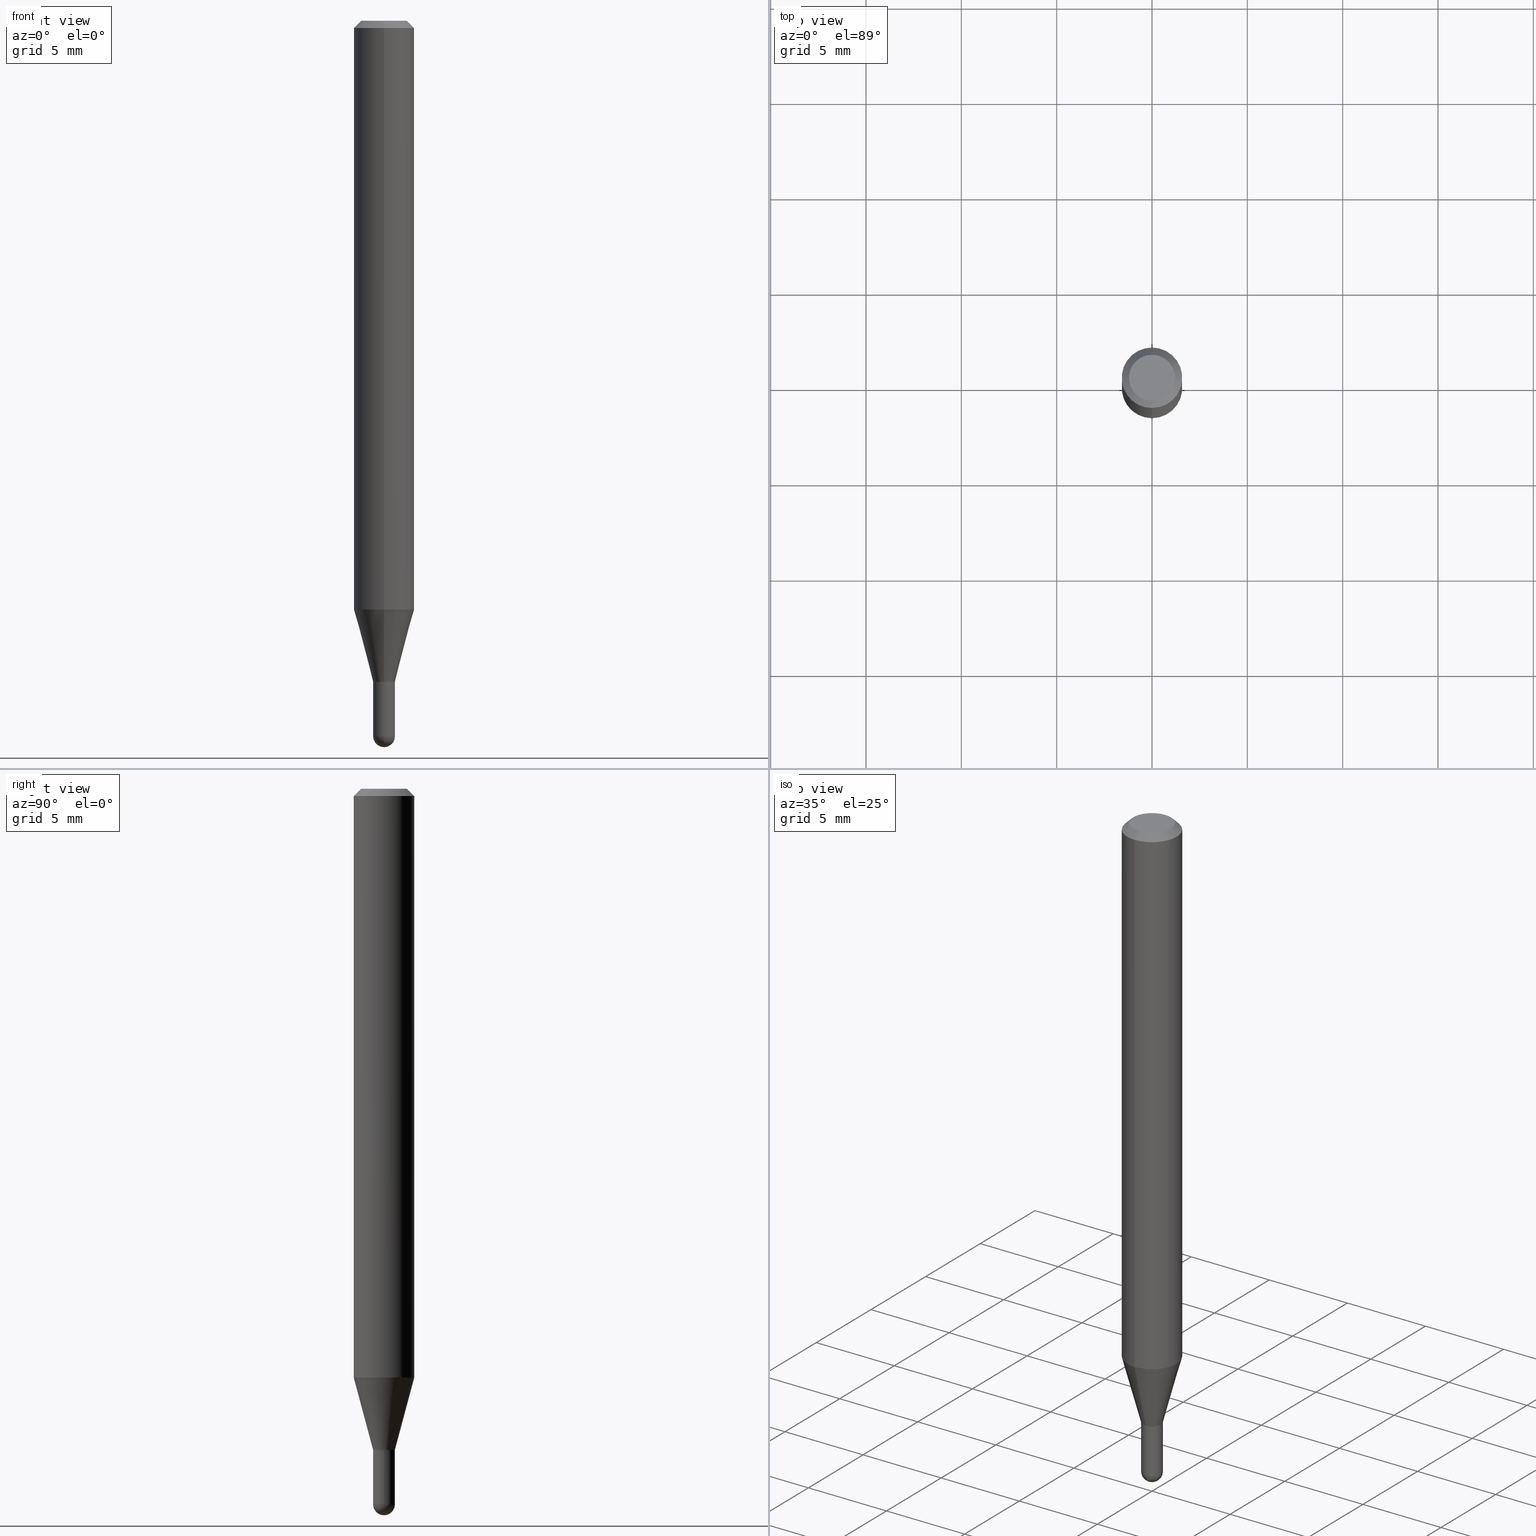
[diagram: canonical four-view strip — front | top / right | iso, engineering-drawing reading convention]
A machine part, canonical four-view strip (front | top / right | iso — engineering-drawing reading convention). The complete STEP part file that produces these views, byte-faithful:
ISO-10303-21;
HEADER;
FILE_DESCRIPTION (( 'STEP AP203' ),
    '1' );
FILE_NAME ('04423.STEP',
    '2024-03-08T19:23:19',
    ( '' ),
    ( '' ),
    'SwSTEP 2.0',
    'SolidWorks 2023',
    '' );
FILE_SCHEMA (( 'CONFIG_CONTROL_DESIGN' ));
ENDSEC;

DATA;
#1 = EDGE_CURVE ( 'NONE', #239, #338, #289, .T. ) ;
#2 = DIRECTION ( 'NONE',  ( -2.445464325019758025E-29, 3.491487756127019811E-15, 1.000000000000000000 ) ) ;
#3 = ADVANCED_FACE ( 'NONE', ( #274 ), #431, .T. ) ;
#4 = DIRECTION ( 'NONE',  ( -6.982962677686266711E-15, -1.000000000000000000, 3.491487756127019416E-15 ) ) ;
#5 = DIRECTION ( 'NONE',  ( 1.000000000000000000, -6.982962677686269077E-15, 0.000000000000000000 ) ) ;
#6 = CARTESIAN_POINT ( 'NONE',  ( -1.536251789090644327E-16, -0.02200000000000476574, -1.364999999999999769 ) ) ;
#7 = DIRECTION ( 'NONE',  ( -6.982962677686266711E-15, -1.000000000000000000, 0.000000000000000000 ) ) ;
#8 = ORIENTED_EDGE ( 'NONE', *, *, #333, .F. ) ;
#9 = CIRCLE ( 'NONE', #144, 0.02199999999999999872 ) ;
#10 = CIRCLE ( 'NONE', #148, 0.04749999999999999362 ) ;
#11 = EDGE_CURVE ( 'NONE', #424, #392, #95, .T. ) ;
#12 = CARTESIAN_POINT ( 'NONE',  ( 3.668196487529653118E-31, -5.237231634190552790E-17, -0.01500000000000006710 ) ) ;
#13 = ORIENTED_EDGE ( 'NONE', *, *, #129, .F. ) ;
#14 = FACE_OUTER_BOUND ( 'NONE', #61, .T. ) ;
#15 = ORIENTED_EDGE ( 'NONE', *, *, #168, .T. ) ;
#16 = DIRECTION ( 'NONE',  ( -6.982962677686266711E-15, -1.000000000000000000, 0.000000000000000000 ) ) ;
#17 = AXIS2_PLACEMENT_3D ( 'NONE', #280, #159, #4 ) ;
#18 = DIRECTION ( 'NONE',  ( 1.000000000000000000, -6.982962677686269077E-15, 0.000000000000000000 ) ) ;
#19 = EDGE_CURVE ( 'NONE', #285, #33, #125, .T. ) ;
#20 = APPROVAL ( #88, 'UNSPECIFIED' ) ;
#21 = PERSON_AND_ORGANIZATION ( #397, #102 ) ;
#22 = CARTESIAN_POINT ( 'NONE',  ( 3.338064920442711836E-29, -4.765872027520893280E-15, -1.364999999999999991 ) ) ;
#23 = APPROVAL_ROLE ( '' ) ;
#24 = EDGE_CURVE ( 'NONE', #424, #134, #509, .T. ) ;
#25 = EDGE_CURVE ( 'NONE', #275, #79, #158, .T. ) ;
#26 = LOCAL_TIME ( 14, 23, 19.00000000000000000, #463 ) ;
#27 = CARTESIAN_POINT ( 'NONE',  ( -0.02249999999999999917, -4.802395737284797637E-15, -1.364999999999999991 ) ) ;
#28 = PERSON_AND_ORGANIZATION_ROLE ( 'design_owner' ) ;
#29 = DIRECTION ( 'NONE',  ( -2.445464325019758025E-29, 3.491487756127019811E-15, 1.000000000000000000 ) ) ;
#30 = DIRECTION ( 'NONE',  ( 1.000000000000000000, -7.105427357601001070E-15, 4.926315508542082329E-29 ) ) ;
#31 = VERTEX_POINT ( 'NONE', #207 ) ;
#32 = ADVANCED_FACE ( 'NONE', ( #352 ), #87, .T. ) ;
#33 = VERTEX_POINT ( 'NONE', #313 ) ;
#34 = AXIS2_PLACEMENT_3D ( 'NONE', #59, #326, #492 ) ;
#35 = EDGE_CURVE ( 'NONE', #160, #190, #75, .T. ) ;
#36 = ORIENTED_EDGE ( 'NONE', *, *, #123, .T. ) ;
#37 = DIRECTION ( 'NONE',  ( -6.982962677686265922E-15, -1.000000000000000000, 0.000000000000000000 ) ) ;
#38 = ADVANCED_FACE ( 'NONE', ( #316 ), #241, .F. ) ;
#39 = VERTEX_POINT ( 'NONE', #246 ) ;
#40 = FACE_OUTER_BOUND ( 'NONE', #194, .T. ) ;
#41 = DIRECTION ( 'NONE',  ( -6.982962677686266711E-15, -1.000000000000000000, 0.000000000000000000 ) ) ;
#42 = PERSON_AND_ORGANIZATION_ROLE ( 'creator' ) ;
#43 = CARTESIAN_POINT ( 'NONE',  ( 3.611256036987885434E-29, -5.161419133438828807E-15, -1.477500000000000036 ) ) ;
#44 = CARTESIAN_POINT ( 'NONE',  ( 3.613180161138538918E-29, -5.158663678140747361E-15, -1.477500000000000036 ) ) ;
#45 = AXIS2_PLACEMENT_3D ( 'NONE', #43, #347, #37 ) ;
#46 = DIRECTION ( 'NONE',  ( 2.445464325019758025E-29, -3.491487756127019811E-15, -1.000000000000000000 ) ) ;
#47 = CARTESIAN_POINT ( 'NONE',  ( 3.338058803651969615E-29, -4.765880787113381937E-15, -1.364999999999999991 ) ) ;
#48 = LINE ( 'NONE', #398, #183 ) ;
#49 = DIRECTION ( 'NONE',  ( 1.000000000000000000, -6.982962677686269077E-15, 0.000000000000000000 ) ) ;
#50 = ORIENTED_EDGE ( 'NONE', *, *, #92, .T. ) ;
#51 = ORIENTED_EDGE ( 'NONE', *, *, #25, .F. ) ;
#52 = DESIGN_CONTEXT ( 'detailed design', #205, 'design' ) ;
#53 = ORIENTED_EDGE ( 'NONE', *, *, #442, .T. ) ;
#54 = CLOSED_SHELL ( 'NONE', ( #3, #339, #105, #122, #358 ) ) ;
#55 = CONICAL_SURFACE ( 'NONE', #191, 0.06250000000000000000, 0.7853981633974483900 ) ;
#56 = DIRECTION ( 'NONE',  ( -2.445468806185136597E-29, 3.491481338843145583E-15, 1.000000000000000000 ) ) ;
#57 = CARTESIAN_POINT ( 'NONE',  ( 3.611256036987885434E-29, -5.161419133438828807E-15, -1.477500000000000036 ) ) ;
#58 = ORIENTED_EDGE ( 'NONE', *, *, #108, .T. ) ;
#59 = CARTESIAN_POINT ( 'NONE',  ( 0.000000000000000000, 0.000000000000000000, 0.000000000000000000 ) ) ;
#60 = EDGE_CURVE ( 'NONE', #190, #275, #155, .T. ) ;
#61 = EDGE_LOOP ( 'NONE', ( #250, #117, #82, #357 ) ) ;
#62 = AXIS2_PLACEMENT_3D ( 'NONE', #114, #272, #237 ) ;
#63 = CARTESIAN_POINT ( 'NONE',  ( 3.338064920442711836E-29, -4.765872027520893280E-15, -1.364999999999999991 ) ) ;
#64 = ORIENTED_EDGE ( 'NONE', *, *, #267, .T. ) ;
#65 = CC_DESIGN_PERSON_AND_ORGANIZATION_ASSIGNMENT ( #21, #300, ( #359 ) ) ;
#66 = CARTESIAN_POINT ( 'NONE',  ( -1.571166602479050240E-16, -0.02250000000000518599, -1.477500000000000036 ) ) ;
#67 = DATE_AND_TIME ( #258, #26 ) ;
#68 = AXIS2_PLACEMENT_3D ( 'NONE', #444, #210, #7 ) ;
#69 = AXIS2_PLACEMENT_3D ( 'NONE', #447, #99, #295 ) ;
#70 = CONICAL_SURFACE ( 'NONE', #501, 0.02249999999999964528, 0.2617993877991574014 ) ;
#71 = LINE ( 'NONE', #417, #510 ) ;
#72 = EDGE_LOOP ( 'NONE', ( #381, #111, #64, #445 ) ) ;
#73 = EDGE_CURVE ( 'NONE', #33, #285, #480, .T. ) ;
#74 = ORIENTED_EDGE ( 'NONE', *, *, #259, .T. ) ;
#75 = CIRCLE ( 'NONE', #189, 0.02249999999999999917 ) ;
#76 = DIRECTION ( 'NONE',  ( -1.807323732225378260E-15, -0.2588190451025250693, 0.9659258262890670910 ) ) ;
#77 = CIRCLE ( 'NONE', #407, 0.02249999999999999917 ) ;
#78 = ORIENTED_EDGE ( 'NONE', *, *, #249, .F. ) ;
#79 = VERTEX_POINT ( 'NONE', #166 ) ;
#80 = CARTESIAN_POINT ( 'NONE',  ( 3.613180161138538918E-29, -5.158663678140747361E-15, -1.477500000000000036 ) ) ;
#81 = DATE_AND_TIME ( #465, #138 ) ;
#82 = ORIENTED_EDGE ( 'NONE', *, *, #11, .F. ) ;
#83 = APPLICATION_PROTOCOL_DEFINITION ( 'international standard', 'config_control_design', 1994, #205 ) ;
#84 = DIRECTION ( 'NONE',  ( -2.445464325019758025E-29, 3.491487756127019811E-15, 1.000000000000000000 ) ) ;
#85 = CARTESIAN_POINT ( 'NONE',  ( 3.613180161138538918E-29, -5.158663678140747361E-15, -1.477500000000000036 ) ) ;
#86 = LINE ( 'NONE', #198, #303 ) ;
#87 = CYLINDRICAL_SURFACE ( 'NONE', #349, 0.06250000000000000000 ) ;
#88 = APPROVAL_STATUS ( 'not_yet_approved' ) ;
#89 = CYLINDRICAL_SURFACE ( 'NONE', #17, 0.02249999999999964875 ) ;
#90 = DIRECTION ( 'NONE',  ( -6.982962677686266711E-15, -1.000000000000000000, 3.491487756127019416E-15 ) ) ;
#91 = DIRECTION ( 'NONE',  ( -6.982962677686266711E-15, -1.000000000000000000, 0.000000000000000000 ) ) ;
#92 = EDGE_CURVE ( 'NONE', #504, #154, #488, .T. ) ;
#93 = ORIENTED_EDGE ( 'NONE', *, *, #136, .F. ) ;
#94 = FACE_OUTER_BOUND ( 'NONE', #167, .T. ) ;
#95 = CIRCLE ( 'NONE', #302, 0.06250000000000000000 ) ;
#96 = AXIS2_PLACEMENT_3D ( 'NONE', #283, #156, #478 ) ;
#97 = SPHERICAL_SURFACE ( 'NONE', #458, 0.02250000000000005121 ) ;
#98 = EDGE_LOOP ( 'NONE', ( #324, #287, #452, #51, #485 ) ) ;
#99 = DIRECTION ( 'NONE',  ( 2.438088387897960049E-29, -3.491481338843145188E-15, -1.000000000000000000 ) ) ;
#100 = DATE_AND_TIME ( #143, #301 ) ;
#101 = AXIS2_PLACEMENT_3D ( 'NONE', #396, #203, #470 ) ;
#102 = ORGANIZATION ( 'UNSPECIFIED', 'UNSPECIFIED', '' ) ;
#103 = ORIENTED_EDGE ( 'NONE', *, *, #435, .T. ) ;
#104 = DATE_TIME_ROLE ( 'classification_date' ) ;
#105 = ADVANCED_FACE ( 'NONE', ( #290 ), #457, .F. ) ;
#106 = CIRCLE ( 'NONE', #271, 0.02249999999999964875 ) ;
#107 = LINE ( 'NONE', #336, #329 ) ;
#108 = EDGE_CURVE ( 'NONE', #109, #134, #213, .T. ) ;
#109 = VERTEX_POINT ( 'NONE', #253 ) ;
#110 = DIRECTION ( 'NONE',  ( -4.937700262164674260E-15, -0.7071067811865632269, 0.7071067811865319186 ) ) ;
#111 = ORIENTED_EDGE ( 'NONE', *, *, #333, .T. ) ;
#112 = EDGE_LOOP ( 'NONE', ( #216, #74, #50, #170 ) ) ;
#113 = VECTOR ( 'NONE', #76, 39.37007874015748854 ) ;
#114 = CARTESIAN_POINT ( 'NONE',  ( 0.000000000000000000, 0.000000000000000000, 0.000000000000000000 ) ) ;
#115 = CC_DESIGN_APPROVAL ( #20, ( #427 ) ) ;
#116 = ORIENTED_EDGE ( 'NONE', *, *, #507, .F. ) ;
#117 = ORIENTED_EDGE ( 'NONE', *, *, #249, .T. ) ;
#118 = CARTESIAN_POINT ( 'NONE',  ( 1.601777402267372811E-45, -2.286922009386618917E-31, -6.549992923141217135E-17 ) ) ;
#119 = ADVANCED_FACE ( 'NONE', ( #327 ), #173, .T. ) ;
#120 = FACE_OUTER_BOUND ( 'NONE', #284, .T. ) ;
#121 = DIRECTION ( 'NONE',  ( -2.445468806185136597E-29, 3.491481338843145583E-15, 1.000000000000000000 ) ) ;
#122 = ADVANCED_FACE ( 'NONE', ( #135 ), #97, .T. ) ;
#123 = EDGE_CURVE ( 'NONE', #39, #109, #410, .T. ) ;
#124 = DIRECTION ( 'NONE',  ( -6.982962677686265922E-15, -1.000000000000000000, 3.483106191921935554E-15 ) ) ;
#125 = CIRCLE ( 'NONE', #228, 0.02249999999999964528 ) ;
#126 = CARTESIAN_POINT ( 'NONE',  ( 0.000000000000000000, 0.000000000000000000, 0.000000000000000000 ) ) ;
#127 =( GEOMETRIC_REPRESENTATION_CONTEXT ( 3 ) GLOBAL_UNCERTAINTY_ASSIGNED_CONTEXT ( ( #499 ) ) GLOBAL_UNIT_ASSIGNED_CONTEXT ( ( #220, #175, #133 ) ) REPRESENTATION_CONTEXT ( 'NONE', 'WORKASPACE' ) );
#128 = EDGE_CURVE ( 'NONE', #33, #154, #262, .T. ) ;
#129 = EDGE_CURVE ( 'NONE', #31, #149, #288, .T. ) ;
#130 = FACE_OUTER_BOUND ( 'NONE', #231, .T. ) ;
#131 = DIRECTION ( 'NONE',  ( -2.445464325019758025E-29, 3.491487756127019811E-15, 1.000000000000000000 ) ) ;
#132 = EDGE_LOOP ( 'NONE', ( #176, #305, #261, #388 ) ) ;
#133 =( NAMED_UNIT ( * ) SI_UNIT ( $, .STERADIAN. ) SOLID_ANGLE_UNIT ( ) );
#134 = VERTEX_POINT ( 'NONE', #150 ) ;
#135 = FACE_OUTER_BOUND ( 'NONE', #307, .T. ) ;
#136 = EDGE_CURVE ( 'NONE', #338, #239, #9, .T. ) ;
#137 = ORIENTED_EDGE ( 'NONE', *, *, #267, .F. ) ;
#138 = LOCAL_TIME ( 14, 23, 19.00000000000000000, #196 ) ;
#139 = AXIS2_PLACEMENT_3D ( 'NONE', #63, #486, #362 ) ;
#140 = DIRECTION ( 'NONE',  ( -2.445468806185136597E-29, 3.491481338843145583E-15, 1.000000000000000000 ) ) ;
#141 = DIRECTION ( 'NONE',  ( -2.445464325019758025E-29, 3.491487756127019811E-15, 1.000000000000000000 ) ) ;
#142 = DIRECTION ( 'NONE',  ( -2.445464325019758025E-29, 3.491487756127019811E-15, 1.000000000000000000 ) ) ;
#143 = CALENDAR_DATE ( 2024, 8, 3 ) ;
#144 = AXIS2_PLACEMENT_3D ( 'NONE', #146, #29, #380 ) ;
#145 = CIRCLE ( 'NONE', #139, 0.02249999999999999917 ) ;
#146 = CARTESIAN_POINT ( 'NONE',  ( 3.338058803651969054E-29, -4.765880787113381148E-15, -1.364999999999999769 ) ) ;
#147 = CARTESIAN_POINT ( 'NONE',  ( 1.563194018672553858E-16, 0.02199999999999522823, -1.364999999999999769 ) ) ;
#148 = AXIS2_PLACEMENT_3D ( 'NONE', #118, #84, #278 ) ;
#149 = VERTEX_POINT ( 'NONE', #187 ) ;
#150 = CARTESIAN_POINT ( 'NONE',  ( -4.364351673553912750E-16, -0.06250000000000005551, -0.01499999999999984852 ) ) ;
#151 = ORIENTED_EDGE ( 'NONE', *, *, #60, .F. ) ;
#152 = CC_DESIGN_PERSON_AND_ORGANIZATION_ASSIGNMENT ( #461, #375, ( #383 ) ) ;
#153 = CARTESIAN_POINT ( 'NONE',  ( 3.316907271900976096E-16, 0.04749999999999999362, -1.985956330317395178E-16 ) ) ;
#154 = VERTEX_POINT ( 'NONE', #306 ) ;
#155 = CIRCLE ( 'NONE', #448, 0.02249999999999999917 ) ;
#156 = DIRECTION ( 'NONE',  ( -2.445468806185136597E-29, 3.491481338843145583E-15, 1.000000000000000000 ) ) ;
#157 = AXIS2_PLACEMENT_3D ( 'NONE', #276, #353, #162 ) ;
#158 = LINE ( 'NONE', #356, #374 ) ;
#159 = DIRECTION ( 'NONE',  ( -2.445464325019758025E-29, 3.491487756127019811E-15, 1.000000000000000000 ) ) ;
#160 = VERTEX_POINT ( 'NONE', #186 ) ;
#161 = DATE_AND_TIME ( #204, #394 ) ;
#162 = DIRECTION ( 'NONE',  ( -6.982962677686265922E-15, -1.000000000000000000, 0.000000000000000000 ) ) ;
#163 = DIRECTION ( 'NONE',  ( -2.445464325019758025E-29, 3.491487756127019811E-15, 1.000000000000000000 ) ) ;
#164 = EDGE_CURVE ( 'NONE', #239, #504, #467, .T. ) ;
#165 = DIRECTION ( 'NONE',  ( 6.982962677686265922E-15, 1.000000000000000000, -3.483106191921935554E-15 ) ) ;
#166 = CARTESIAN_POINT ( 'NONE',  ( 0.02249999999999999917, -4.922988687768834913E-15, -1.364999999999999991 ) ) ;
#167 = EDGE_LOOP ( 'NONE', ( #93, #270 ) ) ;
#168 = EDGE_CURVE ( 'NONE', #338, #154, #107, .T. ) ;
#169 = DIRECTION ( 'NONE',  ( -6.982962677686266711E-15, -1.000000000000000000, 0.000000000000000000 ) ) ;
#170 = ORIENTED_EDGE ( 'NONE', *, *, #128, .F. ) ;
#171 = CARTESIAN_POINT ( 'NONE',  ( 3.613180161138538918E-29, -5.158663678140747361E-15, -1.477500000000000036 ) ) ;
#172 = VERTEX_POINT ( 'NONE', #266 ) ;
#173 = CONICAL_SURFACE ( 'NONE', #222, 0.02199999999999999872, 0.7853981633974739252 ) ;
#174 = CIRCLE ( 'NONE', #157, 0.02250000000000005121 ) ;
#175 =( NAMED_UNIT ( * ) PLANE_ANGLE_UNIT ( ) SI_UNIT ( $, .RADIAN. ) );
#176 = ORIENTED_EDGE ( 'NONE', *, *, #136, .T. ) ;
#177 = APPROVAL_STATUS ( 'not_yet_approved' ) ;
#178 = PERSON_AND_ORGANIZATION ( #397, #102 ) ;
#179 = CARTESIAN_POINT ( 'NONE',  ( 3.338058803651969615E-29, -4.765880787113381937E-15, -1.364999999999999991 ) ) ;
#180 = DIRECTION ( 'NONE',  ( -6.982962677686265922E-15, -1.000000000000000000, 3.483106191921935554E-15 ) ) ;
#181 = CALENDAR_DATE ( 2024, 8, 3 ) ;
#182 = CC_DESIGN_PERSON_AND_ORGANIZATION_ASSIGNMENT ( #335, #227, ( #383 ) ) ;
#183 = VECTOR ( 'NONE', #433, 39.37007874015748143 ) ;
#184 = ADVANCED_BREP_SHAPE_REPRESENTATION ( '04423', ( #400, #405, #34 ), #127 ) ;
#185 = CIRCLE ( 'NONE', #340, 0.06250000000000000000 ) ;
#186 = CARTESIAN_POINT ( 'NONE',  ( -0.02249999999999999917, -4.802395737284797637E-15, -1.477500000000000036 ) ) ;
#187 = CARTESIAN_POINT ( 'NONE',  ( 1.598721155460587989E-16, 0.02249999999999486439, -1.477500000000000036 ) ) ;
#188 = EDGE_CURVE ( 'NONE', #160, #233, #71, .T. ) ;
#189 = AXIS2_PLACEMENT_3D ( 'NONE', #85, #474, #5 ) ;
#190 = VERTEX_POINT ( 'NONE', #66 ) ;
#191 = AXIS2_PLACEMENT_3D ( 'NONE', #206, #46, #165 ) ;
#192 = DIRECTION ( 'NONE',  ( -6.982962677686265922E-15, -1.000000000000000000, 0.000000000000000000 ) ) ;
#193 = PERSON_AND_ORGANIZATION ( #397, #102 ) ;
#194 = EDGE_LOOP ( 'NONE', ( #309, #484, #502, #310 ) ) ;
#195 = DIRECTION ( 'NONE',  ( -2.445464325019758025E-29, 3.491487756127019811E-15, 1.000000000000000000 ) ) ;
#196 = COORDINATED_UNIVERSAL_TIME_OFFSET ( 5, 0, .BEHIND. ) ;
#197 = ORIENTED_EDGE ( 'NONE', *, *, #129, .T. ) ;
#198 = CARTESIAN_POINT ( 'NONE',  ( -4.287811248607203282E-16, -0.06250000000000005551, -0.01499999999999984852 ) ) ;
#199 = ORIENTED_EDGE ( 'NONE', *, *, #19, .T. ) ;
#200 = COORDINATED_UNIVERSAL_TIME_OFFSET ( 5, 0, .BEHIND. ) ;
#201 = AXIS2_PLACEMENT_3D ( 'NONE', #22, #56, #365 ) ;
#202 = CARTESIAN_POINT ( 'NONE',  ( 1.598721155460533754E-16, 0.02249999999999487826, -1.364999999999999991 ) ) ;
#203 = DIRECTION ( 'NONE',  ( -2.445464325019758025E-29, 3.491487756127019811E-15, 1.000000000000000000 ) ) ;
#204 = CALENDAR_DATE ( 2024, 8, 3 ) ;
#205 = APPLICATION_CONTEXT ( 'configuration controlled 3d designs of mechanical parts and assemblies' ) ;
#206 = CARTESIAN_POINT ( 'NONE',  ( 3.668196487529653118E-31, -5.237231634190552790E-17, -0.01500000000000006710 ) ) ;
#207 = CARTESIAN_POINT ( 'NONE',  ( 3.665317023051724389E-29, -5.241355191211840740E-15, -1.500000000000000222 ) ) ;
#208 = APPROVAL_DATE_TIME ( #81, #20 ) ;
#209 = CARTESIAN_POINT ( 'NONE',  ( 3.019806626980729718E-16, 0.02249999999999487826, -1.364999999999999991 ) ) ;
#210 = DIRECTION ( 'NONE',  ( -2.445464325019758025E-29, 3.491487756127019811E-15, 1.000000000000000000 ) ) ;
#211 = ORIENTED_EDGE ( 'NONE', *, *, #292, .T. ) ;
#212 = CARTESIAN_POINT ( 'NONE',  ( 4.440892098500625669E-16, 0.06250000000000000000, -2.182179847579387382E-16 ) ) ;
#213 = CIRCLE ( 'NONE', #420, 0.06250000000000000000 ) ;
#214 = DIRECTION ( 'NONE',  ( -6.982962677686265922E-15, -1.000000000000000000, 3.491487756127019811E-15 ) ) ;
#215 = APPROVAL_PERSON_ORGANIZATION ( #178, #20, #235 ) ;
#216 = ORIENTED_EDGE ( 'NONE', *, *, #19, .F. ) ;
#217 = FACE_OUTER_BOUND ( 'NONE', #363, .T. ) ;
#218 = DIRECTION ( 'NONE',  ( -2.445464325019758025E-29, 3.491487756127019811E-15, 1.000000000000000000 ) ) ;
#219 = DIRECTION ( 'NONE',  ( 1.000000000000000000, -6.982962677686265922E-15, 4.883557194083111780E-29 ) ) ;
#220 =( CONVERSION_BASED_UNIT ( 'INCH', #298 ) LENGTH_UNIT ( ) NAMED_UNIT ( #372 ) );
#221 = EDGE_CURVE ( 'NONE', #33, #424, #425, .T. ) ;
#222 = AXIS2_PLACEMENT_3D ( 'NONE', #451, #260, #256 ) ;
#223 = ORIENTED_EDGE ( 'NONE', *, *, #292, .F. ) ;
#224 = AXIS2_PLACEMENT_3D ( 'NONE', #430, #195, #124 ) ;
#225 = CARTESIAN_POINT ( 'NONE',  ( -4.364351673553620871E-16, -0.06250000000000427436, -1.215717967697248048 ) ) ;
#226 = CC_DESIGN_DATE_AND_TIME_ASSIGNMENT ( #67, #104, ( #359 ) ) ;
#227 = PERSON_AND_ORGANIZATION_ROLE ( 'creator' ) ;
#228 = AXIS2_PLACEMENT_3D ( 'NONE', #47, #238, #41 ) ;
#229 = AXIS2_PLACEMENT_3D ( 'NONE', #80, #245, #355 ) ;
#230 = DIRECTION ( 'NONE',  ( 5.024295867788190974E-15, 0.7071067811865681119, 0.7071067811865270336 ) ) ;
#231 = EDGE_LOOP ( 'NONE', ( #402, #197, #429, #151 ) ) ;
#232 = VECTOR ( 'NONE', #497, 39.37007874015748143 ) ;
#233 = VERTEX_POINT ( 'NONE', #27 ) ;
#234 = FACE_OUTER_BOUND ( 'NONE', #320, .T. ) ;
#235 = APPROVAL_ROLE ( '' ) ;
#236 = ORIENTED_EDGE ( 'NONE', *, *, #188, .F. ) ;
#237 = DIRECTION ( 'NONE',  ( -6.982962677686265922E-15, -1.000000000000000000, 3.491487756127019811E-15 ) ) ;
#238 = DIRECTION ( 'NONE',  ( -2.445464325019758025E-29, 3.491487756127019811E-15, 1.000000000000000000 ) ) ;
#239 = VERTEX_POINT ( 'NONE', #243 ) ;
#240 = DIRECTION ( 'NONE',  ( -6.982962677686265922E-15, -1.000000000000000000, 0.000000000000000000 ) ) ;
#241 = CYLINDRICAL_SURFACE ( 'NONE', #366, 0.02249999999999964875 ) ;
#242 = APPROVAL_PERSON_ORGANIZATION ( #193, #503, #23 ) ;
#243 = CARTESIAN_POINT ( 'NONE',  ( 1.580957587066543560E-16, 0.02199999999999522823, -1.364999999999999769 ) ) ;
#244 = ORIENTED_EDGE ( 'NONE', *, *, #92, .F. ) ;
#245 = DIRECTION ( 'NONE',  ( -2.445468806185136597E-29, 3.491481338843145583E-15, 1.000000000000000000 ) ) ;
#246 = CARTESIAN_POINT ( 'NONE',  ( 3.840629472727447874E-16, 0.04749999999999999362, -2.313455976474456035E-16 ) ) ;
#247 = MECHANICAL_CONTEXT ( 'NONE', #389, 'mechanical' ) ;
#248 = CARTESIAN_POINT ( 'NONE',  ( 2.972994919289143303E-29, -4.244664399118566886E-15, -1.215717967697248492 ) ) ;
#249 = EDGE_CURVE ( 'NONE', #285, #392, #386, .T. ) ;
#250 = ORIENTED_EDGE ( 'NONE', *, *, #73, .T. ) ;
#251 = CARTESIAN_POINT ( 'NONE',  ( 3.336836071489460012E-29, -4.764135043235319188E-15, -1.364500000000000046 ) ) ;
#252 = CIRCLE ( 'NONE', #224, 0.06250000000000000000 ) ;
#253 = CARTESIAN_POINT ( 'NONE',  ( 4.440892098500924943E-16, 0.06249999999999993755, -0.01500000000000028394 ) ) ;
#254 = LOCAL_TIME ( 14, 23, 19.00000000000000000, #330 ) ;
#255 = PLANE ( 'NONE',  #331 ) ;
#256 = DIRECTION ( 'NONE',  ( -6.982962677686265922E-15, -1.000000000000000000, 0.000000000000000000 ) ) ;
#257 = PRODUCT_RELATED_PRODUCT_CATEGORY ( 'detail', '', ( #476 ) ) ;
#258 = CALENDAR_DATE ( 2024, 8, 3 ) ;
#259 = EDGE_CURVE ( 'NONE', #285, #504, #48, .T. ) ;
#260 = DIRECTION ( 'NONE',  ( -2.445464325019758025E-29, 3.491487756127019811E-15, 1.000000000000000000 ) ) ;
#261 = ORIENTED_EDGE ( 'NONE', *, *, #423, .F. ) ;
#262 = LINE ( 'NONE', #462, #232 ) ;
#263 = PERSON_AND_ORGANIZATION ( #397, #102 ) ;
#264 = AXIS2_PLACEMENT_3D ( 'NONE', #421, #30, #342 ) ;
#265 = AXIS2_PLACEMENT_3D ( 'NONE', #456, #141, #16 ) ;
#266 = CARTESIAN_POINT ( 'NONE',  ( -3.773273898774340269E-16, -0.04749999999999999362, 1.003457391846212608E-16 ) ) ;
#267 = EDGE_CURVE ( 'NONE', #134, #109, #252, .T. ) ;
#268 = EDGE_LOOP ( 'NONE', ( #8, #455, #36, #58 ) ) ;
#269 = DIRECTION ( 'NONE',  ( -2.445468806185136877E-29, 3.491481338843145188E-15, 1.000000000000000000 ) ) ;
#270 = ORIENTED_EDGE ( 'NONE', *, *, #1, .F. ) ;
#271 = AXIS2_PLACEMENT_3D ( 'NONE', #251, #218, #169 ) ;
#272 = DIRECTION ( 'NONE',  ( -2.445464325019758025E-29, 3.491487756127019811E-15, 1.000000000000000000 ) ) ;
#273 = ADVANCED_FACE ( 'NONE', ( #40 ), #89, .F. ) ;
#274 = FACE_OUTER_BOUND ( 'NONE', #98, .T. ) ;
#275 = VERTEX_POINT ( 'NONE', #439 ) ;
#276 = CARTESIAN_POINT ( 'NONE',  ( 3.611256036987885434E-29, -5.161419133438828807E-15, -1.477500000000000036 ) ) ;
#277 = CARTESIAN_POINT ( 'NONE',  ( 0.000000000000000000, 0.000000000000000000, 0.000000000000000000 ) ) ;
#278 = DIRECTION ( 'NONE',  ( -6.982962677686266711E-15, -1.000000000000000000, 3.491487756127020205E-15 ) ) ;
#279 = AXIS2_PLACEMENT_3D ( 'NONE', #483, #131, #91 ) ;
#280 = CARTESIAN_POINT ( 'NONE',  ( 0.000000000000000000, 0.000000000000000000, 0.000000000000000000 ) ) ;
#281 = DIRECTION ( 'NONE',  ( -2.445464325019758025E-29, 3.491487756127019811E-15, 1.000000000000000000 ) ) ;
#282 = ADVANCED_FACE ( 'NONE', ( #345 ), #291, .T. ) ;
#283 = CARTESIAN_POINT ( 'NONE',  ( 0.000000000000000000, 0.000000000000000000, 0.000000000000000000 ) ) ;
#284 = EDGE_LOOP ( 'NONE', ( #413, #211, #411, #348 ) ) ;
#285 = VERTEX_POINT ( 'NONE', #209 ) ;
#286 = CARTESIAN_POINT ( 'NONE',  ( 1.601777402267372811E-45, -2.286922009386618917E-31, -6.549992923141217135E-17 ) ) ;
#287 = ORIENTED_EDGE ( 'NONE', *, *, #188, .T. ) ;
#288 = CIRCLE ( 'NONE', #264, 0.02250000000000005121 ) ;
#289 = CIRCLE ( 'NONE', #101, 0.02199999999999999872 ) ;
#290 = FACE_OUTER_BOUND ( 'NONE', #294, .T. ) ;
#291 = CONICAL_SURFACE ( 'NONE', #416, 0.02199999999999999872, 0.7853981633974739252 ) ;
#292 = EDGE_CURVE ( 'NONE', #392, #424, #185, .T. ) ;
#293 = ADVANCED_FACE ( 'NONE', ( #351 ), #55, .T. ) ;
#294 = EDGE_LOOP ( 'NONE', ( #370, #344 ) ) ;
#295 = DIRECTION ( 'NONE',  ( -1.000000000000000000, 6.982962677686265922E-15, -4.876176775795935793E-29 ) ) ;
#296 = ORIENTED_EDGE ( 'NONE', *, *, #35, .T. ) ;
#297 = ORIENTED_EDGE ( 'NONE', *, *, #35, .F. ) ;
#298 = LENGTH_MEASURE_WITH_UNIT ( LENGTH_MEASURE( 0.02539999999999999897 ), #489 );
#299 = CC_DESIGN_APPROVAL ( #503, ( #383 ) ) ;
#300 = PERSON_AND_ORGANIZATION_ROLE ( 'classification_officer' ) ;
#301 = LOCAL_TIME ( 14, 23, 19.00000000000000000, #371 ) ;
#302 = AXIS2_PLACEMENT_3D ( 'NONE', #248, #479, #438 ) ;
#303 = VECTOR ( 'NONE', #512, 39.37007874015748143 ) ;
#304 = EDGE_CURVE ( 'NONE', #275, #149, #376, .T. ) ;
#305 = ORIENTED_EDGE ( 'NONE', *, *, #164, .T. ) ;
#306 = CARTESIAN_POINT ( 'NONE',  ( -1.571166602479056896E-16, -0.02250000000000449210, -1.364500000000000046 ) ) ;
#307 = EDGE_LOOP ( 'NONE', ( #13, #404, #297, #116 ) ) ;
#308 = DIRECTION ( 'NONE',  ( 6.982962677686265922E-15, 1.000000000000000000, -3.491487756127019811E-15 ) ) ;
#309 = ORIENTED_EDGE ( 'NONE', *, *, #259, .F. ) ;
#310 = ORIENTED_EDGE ( 'NONE', *, *, #423, .T. ) ;
#311 = APPROVAL_PERSON_ORGANIZATION ( #263, #323, #422 ) ;
#312 = DIRECTION ( 'NONE',  ( 1.839019923739649225E-15, 0.2588190451025318417, 0.9659258262890653146 ) ) ;
#313 = CARTESIAN_POINT ( 'NONE',  ( -1.571166602479051226E-16, -0.02250000000000441230, -1.364999999999999991 ) ) ;
#314 = FACE_OUTER_BOUND ( 'NONE', #318, .T. ) ;
#315 = CYLINDRICAL_SURFACE ( 'NONE', #96, 0.02249999999999999917 ) ;
#316 = FACE_OUTER_BOUND ( 'NONE', #112, .T. ) ;
#317 = CONICAL_SURFACE ( 'NONE', #459, 0.06250000000000000000, 0.7853981633974483900 ) ;
#318 = EDGE_LOOP ( 'NONE', ( #236, #296, #432, #471, #341 ) ) ;
#319 = CARTESIAN_POINT ( 'NONE',  ( 1.598721155460528577E-16, 0.02249999999999480541, -1.364500000000000046 ) ) ;
#320 = EDGE_LOOP ( 'NONE', ( #346, #103 ) ) ;
#321 = DIRECTION ( 'NONE',  ( 2.445464325019758025E-29, -3.491487756127019811E-15, -1.000000000000000000 ) ) ;
#322 = AXIS2_PLACEMENT_3D ( 'NONE', #277, #121, #441 ) ;
#323 = APPROVAL ( #177, 'UNSPECIFIED' ) ;
#324 = ORIENTED_EDGE ( 'NONE', *, *, #507, .T. ) ;
#325 = APPLICATION_PROTOCOL_DEFINITION ( 'international standard', 'config_control_design', 1994, #389 ) ;
#326 = DIRECTION ( 'NONE',  ( 0.000000000000000000, 0.000000000000000000, 1.000000000000000000 ) ) ;
#327 = FACE_OUTER_BOUND ( 'NONE', #132, .T. ) ;
#328 = SECURITY_CLASSIFICATION_LEVEL ( 'unclassified' ) ;
#329 = VECTOR ( 'NONE', #110, 39.37007874015748143 ) ;
#330 = COORDINATED_UNIVERSAL_TIME_OFFSET ( 5, 0, .BEHIND. ) ;
#331 = AXIS2_PLACEMENT_3D ( 'NONE', #450, #368, #414 ) ;
#332 = SHAPE_DEFINITION_REPRESENTATION ( #440, #184 ) ;
#333 = EDGE_CURVE ( 'NONE', #172, #134, #86, .T. ) ;
#334 = CARTESIAN_POINT ( 'NONE',  ( 4.364351673553919652E-16, 0.06249999999999995143, -0.01500000000000028394 ) ) ;
#335 = PERSON_AND_ORGANIZATION ( #397, #102 ) ;
#336 = CARTESIAN_POINT ( 'NONE',  ( -1.536251789090644327E-16, -0.02200000000000476574, -1.364999999999999769 ) ) ;
#337 = CC_DESIGN_APPROVAL ( #323, ( #359 ) ) ;
#338 = VERTEX_POINT ( 'NONE', #6 ) ;
#339 = ADVANCED_FACE ( 'NONE', ( #130 ), #443, .T. ) ;
#340 = AXIS2_PLACEMENT_3D ( 'NONE', #505, #469, #395 ) ;
#341 = ORIENTED_EDGE ( 'NONE', *, *, #453, .F. ) ;
#342 = DIRECTION ( 'NONE',  ( 7.105427357600999492E-15, 1.000000000000000000, 0.000000000000000000 ) ) ;
#343 = EDGE_CURVE ( 'NONE', #31, #190, #174, .T. ) ;
#344 = ORIENTED_EDGE ( 'NONE', *, *, #453, .T. ) ;
#345 = FACE_OUTER_BOUND ( 'NONE', #385, .T. ) ;
#346 = ORIENTED_EDGE ( 'NONE', *, *, #403, .T. ) ;
#347 = DIRECTION ( 'NONE',  ( 1.000000000000000000, -6.982962677686265922E-15, 4.883557194083111780E-29 ) ) ;
#348 = ORIENTED_EDGE ( 'NONE', *, *, #108, .F. ) ;
#349 = AXIS2_PLACEMENT_3D ( 'NONE', #354, #2, #214 ) ;
#350 = VECTOR ( 'NONE', #142, 39.37007874015748143 ) ;
#351 = FACE_OUTER_BOUND ( 'NONE', #72, .T. ) ;
#352 = FACE_OUTER_BOUND ( 'NONE', #361, .T. ) ;
#353 = DIRECTION ( 'NONE',  ( -1.000000000000000000, 6.982962677686265922E-15, -4.883557194083112340E-29 ) ) ;
#354 = CARTESIAN_POINT ( 'NONE',  ( 0.000000000000000000, 0.000000000000000000, 0.000000000000000000 ) ) ;
#355 = DIRECTION ( 'NONE',  ( 1.000000000000000000, -6.982962677686269077E-15, 0.000000000000000000 ) ) ;
#356 = CARTESIAN_POINT ( 'NONE',  ( 0.02249999999999999917, -1.571166602479409911E-16, 1.097139774554085483E-30 ) ) ;
#357 = ORIENTED_EDGE ( 'NONE', *, *, #221, .F. ) ;
#358 = ADVANCED_FACE ( 'NONE', ( #314 ), #315, .T. ) ;
#359 = SECURITY_CLASSIFICATION ( '', '', #328 ) ;
#360 = CARTESIAN_POINT ( 'NONE',  ( -4.364351673553916201E-16, -0.06250000000000000000, 2.182179847579387382E-16 ) ) ;
#361 = EDGE_LOOP ( 'NONE', ( #506, #53, #137, #468 ) ) ;
#362 = DIRECTION ( 'NONE',  ( 1.000000000000000000, -6.982962677686269077E-15, 0.000000000000000000 ) ) ;
#363 = EDGE_LOOP ( 'NONE', ( #78, #199, #379, #223 ) ) ;
#364 = DIRECTION ( 'NONE',  ( -6.982962677686266711E-15, -1.000000000000000000, 0.000000000000000000 ) ) ;
#365 = DIRECTION ( 'NONE',  ( 1.000000000000000000, -6.982962677686269077E-15, 0.000000000000000000 ) ) ;
#366 = AXIS2_PLACEMENT_3D ( 'NONE', #126, #281, #90 ) ;
#367 = APPROVAL_STATUS ( 'not_yet_approved' ) ;
#368 = DIRECTION ( 'NONE',  ( -2.445464325019757745E-29, 3.491487756127019811E-15, 1.000000000000000000 ) ) ;
#369 = ADVANCED_FACE ( 'NONE', ( #234 ), #472, .F. ) ;
#370 = ORIENTED_EDGE ( 'NONE', *, *, #490, .T. ) ;
#371 = COORDINATED_UNIVERSAL_TIME_OFFSET ( 5, 0, .BEHIND. ) ;
#372 = DIMENSIONAL_EXPONENTS ( 1.000000000000000000, 0.000000000000000000, 0.000000000000000000, 0.000000000000000000, 0.000000000000000000, 0.000000000000000000, 0.000000000000000000 ) ;
#373 = CARTESIAN_POINT ( 'NONE',  ( -1.571166602479051226E-16, -0.02250000000000441230, -1.364999999999999991 ) ) ;
#374 = VECTOR ( 'NONE', #434, 39.37007874015748143 ) ;
#375 = PERSON_AND_ORGANIZATION_ROLE ( 'design_supplier' ) ;
#376 = CIRCLE ( 'NONE', #229, 0.02249999999999999917 ) ;
#377 = ADVANCED_FACE ( 'NONE', ( #120 ), #390, .T. ) ;
#378 = DIRECTION ( 'NONE',  ( 4.937700262164548042E-15, 0.7071067811865451302, -0.7071067811865499042 ) ) ;
#379 = ORIENTED_EDGE ( 'NONE', *, *, #221, .T. ) ;
#380 = DIRECTION ( 'NONE',  ( -6.982962677686265922E-15, -1.000000000000000000, 0.000000000000000000 ) ) ;
#381 = ORIENTED_EDGE ( 'NONE', *, *, #435, .F. ) ;
#382 = VECTOR ( 'NONE', #163, 39.37007874015748143 ) ;
#383 = PRODUCT_DEFINITION_FORMATION_WITH_SPECIFIED_SOURCE ( 'ANY', '', #476, .NOT_KNOWN. ) ;
#384 = DATE_TIME_ROLE ( 'creation_date' ) ;
#385 = EDGE_LOOP ( 'NONE', ( #466, #464, #15, #244 ) ) ;
#386 = LINE ( 'NONE', #202, #406 ) ;
#387 = CC_DESIGN_DATE_AND_TIME_ASSIGNMENT ( #161, #384, ( #427 ) ) ;
#388 = ORIENTED_EDGE ( 'NONE', *, *, #168, .F. ) ;
#389 = APPLICATION_CONTEXT ( 'configuration controlled 3d designs of mechanical parts and assemblies' ) ;
#390 = CYLINDRICAL_SURFACE ( 'NONE', #62, 0.06250000000000000000 ) ;
#391 = PERSON_AND_ORGANIZATION ( #397, #102 ) ;
#392 = VERTEX_POINT ( 'NONE', #508 ) ;
#393 = DIRECTION ( 'NONE',  ( -2.445464325019758025E-29, 3.491487756127019811E-15, 1.000000000000000000 ) ) ;
#394 = LOCAL_TIME ( 14, 23, 19.00000000000000000, #200 ) ;
#395 = DIRECTION ( 'NONE',  ( -6.982962677686265922E-15, -1.000000000000000000, 4.370956789862821150E-15 ) ) ;
#396 = CARTESIAN_POINT ( 'NONE',  ( 3.338058803651969054E-29, -4.765880787113381148E-15, -1.364999999999999769 ) ) ;
#397 = PERSON ( 'UNSPECIFIED', 'UNSPECIFIED', 'UNSPECIFIED', ('UNSPECIFIED'), ('UNSPECIFIED'), ('UNSPECIFIED') ) ;
#398 = CARTESIAN_POINT ( 'NONE',  ( 1.598721155460200214E-16, 0.02249999999999964875, -7.855847451285671413E-17 ) ) ;
#399 = DIRECTION ( 'NONE',  ( -2.445468806185136597E-29, 3.491481338843145583E-15, 1.000000000000000000 ) ) ;
#400 = MANIFOLD_SOLID_BREP ( 'Body-Move/Copy2[1]', #54 ) ;
#401 = PERSON_AND_ORGANIZATION ( #397, #102 ) ;
#402 = ORIENTED_EDGE ( 'NONE', *, *, #343, .F. ) ;
#403 = EDGE_CURVE ( 'NONE', #39, #172, #10, .T. ) ;
#404 = ORIENTED_EDGE ( 'NONE', *, *, #343, .T. ) ;
#405 = MANIFOLD_SOLID_BREP ( 'Body-Move/Copy2[2]', #415 ) ;
#406 = VECTOR ( 'NONE', #312, 39.37007874015748143 ) ;
#407 = AXIS2_PLACEMENT_3D ( 'NONE', #171, #140, #18 ) ;
#408 = DIRECTION ( 'NONE',  ( -2.445464325019758025E-29, 3.491487756127019811E-15, 1.000000000000000000 ) ) ;
#409 = CC_DESIGN_PERSON_AND_ORGANIZATION_ASSIGNMENT ( #391, #42, ( #427 ) ) ;
#410 = LINE ( 'NONE', #334, #500 ) ;
#411 = ORIENTED_EDGE ( 'NONE', *, *, #24, .T. ) ;
#412 = DIRECTION ( 'NONE',  ( -2.445464325019758025E-29, 3.491487756127019811E-15, 1.000000000000000000 ) ) ;
#413 = ORIENTED_EDGE ( 'NONE', *, *, #442, .F. ) ;
#414 = DIRECTION ( 'NONE',  ( -6.982962677686265922E-15, -1.000000000000000000, 3.491487756127019811E-15 ) ) ;
#415 = CLOSED_SHELL ( 'NONE', ( #38, #119, #293, #32, #473, #494, #377, #419, #369, #436, #282, #273 ) ) ;
#416 = AXIS2_PLACEMENT_3D ( 'NONE', #482, #393, #240 ) ;
#417 = CARTESIAN_POINT ( 'NONE',  ( -0.02249999999999999917, 1.598721155460225359E-16, -1.106760395307353780E-30 ) ) ;
#418 = APPROVAL_DATE_TIME ( #100, #323 ) ;
#419 = ADVANCED_FACE ( 'NONE', ( #437 ), #317, .T. ) ;
#420 = AXIS2_PLACEMENT_3D ( 'NONE', #493, #487, #180 ) ;
#421 = CARTESIAN_POINT ( 'NONE',  ( 3.611256036987885434E-29, -5.161419133438828807E-15, -1.477500000000000036 ) ) ;
#422 = APPROVAL_ROLE ( '' ) ;
#423 = EDGE_CURVE ( 'NONE', #154, #504, #106, .T. ) ;
#424 = VERTEX_POINT ( 'NONE', #225 ) ;
#425 = LINE ( 'NONE', #373, #113 ) ;
#426 = CC_DESIGN_SECURITY_CLASSIFICATION ( #359, ( #383 ) ) ;
#427 = PRODUCT_DEFINITION ( 'UNKNOWN', '', #383, #52 ) ;
#428 = CONICAL_SURFACE ( 'NONE', #265, 0.02249999999999964528, 0.2617993877991574014 ) ;
#429 = ORIENTED_EDGE ( 'NONE', *, *, #304, .F. ) ;
#430 = CARTESIAN_POINT ( 'NONE',  ( 3.668196487529653118E-31, -5.237231634190552790E-17, -0.01500000000000006710 ) ) ;
#431 = CYLINDRICAL_SURFACE ( 'NONE', #322, 0.02249999999999999917 ) ;
#432 = ORIENTED_EDGE ( 'NONE', *, *, #60, .T. ) ;
#433 = DIRECTION ( 'NONE',  ( -2.445464325019758025E-29, 3.491487756127019811E-15, 1.000000000000000000 ) ) ;
#434 = DIRECTION ( 'NONE',  ( -2.445468806185136877E-29, 3.491481338843145188E-15, 1.000000000000000000 ) ) ;
#435 = EDGE_CURVE ( 'NONE', #172, #39, #449, .T. ) ;
#436 = ADVANCED_FACE ( 'NONE', ( #94 ), #255, .F. ) ;
#437 = FACE_OUTER_BOUND ( 'NONE', #268, .T. ) ;
#438 = DIRECTION ( 'NONE',  ( -6.982962677686265922E-15, -1.000000000000000000, 4.370956789862821150E-15 ) ) ;
#439 = CARTESIAN_POINT ( 'NONE',  ( 0.02249999999999999917, -5.119384513078760769E-15, -1.477500000000000036 ) ) ;
#440 = PRODUCT_DEFINITION_SHAPE ( 'NONE', 'NONE',  #427 ) ;
#441 = DIRECTION ( 'NONE',  ( 1.000000000000000000, -6.982962677686266711E-15, 4.876176775795935793E-29 ) ) ;
#442 = EDGE_CURVE ( 'NONE', #392, #109, #446, .T. ) ;
#443 = SPHERICAL_SURFACE ( 'NONE', #45, 0.02250000000000005121 ) ;
#444 = CARTESIAN_POINT ( 'NONE',  ( 3.338058803651969615E-29, -4.765880787113381937E-15, -1.364999999999999991 ) ) ;
#445 = ORIENTED_EDGE ( 'NONE', *, *, #123, .F. ) ;
#446 = LINE ( 'NONE', #212, #350 ) ;
#447 = CARTESIAN_POINT ( 'NONE',  ( 1.571166602479743698E-16, 0.02249999999999523215, -1.364999999999999991 ) ) ;
#448 = AXIS2_PLACEMENT_3D ( 'NONE', #44, #399, #49 ) ;
#449 = CIRCLE ( 'NONE', #511, 0.04749999999999999362 ) ;
#450 = CARTESIAN_POINT ( 'NONE',  ( 3.338058803651969054E-29, -4.765880787113381148E-15, -1.364999999999999769 ) ) ;
#451 = CARTESIAN_POINT ( 'NONE',  ( 3.338058803651969054E-29, -4.765880787113381148E-15, -1.364999999999999769 ) ) ;
#452 = ORIENTED_EDGE ( 'NONE', *, *, #490, .F. ) ;
#453 = EDGE_CURVE ( 'NONE', #233, #79, #145, .T. ) ;
#454 = DIRECTION ( 'NONE',  ( -6.982962677686266711E-15, -1.000000000000000000, 3.491487756127020205E-15 ) ) ;
#455 = ORIENTED_EDGE ( 'NONE', *, *, #403, .F. ) ;
#456 = CARTESIAN_POINT ( 'NONE',  ( 3.338058803651969615E-29, -4.765880787113381937E-15, -1.364999999999999991 ) ) ;
#457 = PLANE ( 'NONE',  #69 ) ;
#458 = AXIS2_PLACEMENT_3D ( 'NONE', #57, #219, #192 ) ;
#459 = AXIS2_PLACEMENT_3D ( 'NONE', #12, #321, #491 ) ;
#460 = APPROVAL_DATE_TIME ( #498, #503 ) ;
#461 = PERSON_AND_ORGANIZATION ( #397, #102 ) ;
#462 = CARTESIAN_POINT ( 'NONE',  ( -1.571166602479385506E-16, -0.02249999999999964875, 7.855847451285671413E-17 ) ) ;
#463 = COORDINATED_UNIVERSAL_TIME_OFFSET ( 5, 0, .BEHIND. ) ;
#464 = ORIENTED_EDGE ( 'NONE', *, *, #1, .T. ) ;
#465 = CALENDAR_DATE ( 2024, 8, 3 ) ;
#466 = ORIENTED_EDGE ( 'NONE', *, *, #164, .F. ) ;
#467 = LINE ( 'NONE', #147, #495 ) ;
#468 = ORIENTED_EDGE ( 'NONE', *, *, #24, .F. ) ;
#469 = DIRECTION ( 'NONE',  ( -2.445464325019758025E-29, 3.491487756127019811E-15, 1.000000000000000000 ) ) ;
#470 = DIRECTION ( 'NONE',  ( -6.982962677686265922E-15, -1.000000000000000000, 0.000000000000000000 ) ) ;
#471 = ORIENTED_EDGE ( 'NONE', *, *, #25, .T. ) ;
#472 = PLANE ( 'NONE',  #496 ) ;
#473 = ADVANCED_FACE ( 'NONE', ( #14 ), #70, .T. ) ;
#474 = DIRECTION ( 'NONE',  ( -2.445468806185136597E-29, 3.491481338843145583E-15, 1.000000000000000000 ) ) ;
#475 = DIRECTION ( 'NONE',  ( 2.445464325019757745E-29, -3.491487756127019811E-15, -1.000000000000000000 ) ) ;
#476 = PRODUCT ( '04423', '04423', '', ( #247 ) ) ;
#477 = CC_DESIGN_PERSON_AND_ORGANIZATION_ASSIGNMENT ( #401, #28, ( #476 ) ) ;
#478 = DIRECTION ( 'NONE',  ( 1.000000000000000000, -6.982962677686266711E-15, 4.876176775795935793E-29 ) ) ;
#479 = DIRECTION ( 'NONE',  ( -2.445464325019758025E-29, 3.491487756127019811E-15, 1.000000000000000000 ) ) ;
#480 = CIRCLE ( 'NONE', #68, 0.02249999999999964528 ) ;
#481 = CIRCLE ( 'NONE', #201, 0.02249999999999999917 ) ;
#482 = CARTESIAN_POINT ( 'NONE',  ( 3.338058803651969054E-29, -4.765880787113381148E-15, -1.364999999999999769 ) ) ;
#483 = CARTESIAN_POINT ( 'NONE',  ( 3.336836071489460012E-29, -4.764135043235319188E-15, -1.364500000000000046 ) ) ;
#484 = ORIENTED_EDGE ( 'NONE', *, *, #73, .F. ) ;
#485 = ORIENTED_EDGE ( 'NONE', *, *, #304, .T. ) ;
#486 = DIRECTION ( 'NONE',  ( -2.445468806185136597E-29, 3.491481338843145583E-15, 1.000000000000000000 ) ) ;
#487 = DIRECTION ( 'NONE',  ( -2.445464325019758025E-29, 3.491487756127019811E-15, 1.000000000000000000 ) ) ;
#488 = CIRCLE ( 'NONE', #279, 0.02249999999999964875 ) ;
#489 =( LENGTH_UNIT ( ) NAMED_UNIT ( * ) SI_UNIT ( $, .METRE. ) );
#490 = EDGE_CURVE ( 'NONE', #79, #233, #481, .T. ) ;
#491 = DIRECTION ( 'NONE',  ( 6.982962677686265922E-15, 1.000000000000000000, -3.483106191921935554E-15 ) ) ;
#492 = DIRECTION ( 'NONE',  ( 1.000000000000000000, 0.000000000000000000, 0.000000000000000000 ) ) ;
#493 = CARTESIAN_POINT ( 'NONE',  ( 3.668196487529653118E-31, -5.237231634190552790E-17, -0.01500000000000006710 ) ) ;
#494 = ADVANCED_FACE ( 'NONE', ( #217 ), #428, .T. ) ;
#495 = VECTOR ( 'NONE', #230, 39.37007874015748143 ) ;
#496 = AXIS2_PLACEMENT_3D ( 'NONE', #153, #475, #308 ) ;
#497 = DIRECTION ( 'NONE',  ( -2.445464325019758025E-29, 3.491487756127019811E-15, 1.000000000000000000 ) ) ;
#498 = DATE_AND_TIME ( #181, #254 ) ;
#499 = UNCERTAINTY_MEASURE_WITH_UNIT (LENGTH_MEASURE( 1.000000000000000082E-05 ), #220, 'distance_accuracy_value', 'NONE');
#500 = VECTOR ( 'NONE', #378, 39.37007874015748143 ) ;
#501 = AXIS2_PLACEMENT_3D ( 'NONE', #179, #412, #364 ) ;
#502 = ORIENTED_EDGE ( 'NONE', *, *, #128, .T. ) ;
#503 = APPROVAL ( #367, 'UNSPECIFIED' ) ;
#504 = VERTEX_POINT ( 'NONE', #319 ) ;
#505 = CARTESIAN_POINT ( 'NONE',  ( 2.972994919289143303E-29, -4.244664399118566886E-15, -1.215717967697248492 ) ) ;
#506 = ORIENTED_EDGE ( 'NONE', *, *, #11, .T. ) ;
#507 = EDGE_CURVE ( 'NONE', #149, #160, #77, .T. ) ;
#508 = CARTESIAN_POINT ( 'NONE',  ( 4.440892098500920998E-16, 0.06249999999999573952, -1.215717967697248714 ) ) ;
#509 = LINE ( 'NONE', #360, #382 ) ;
#510 = VECTOR ( 'NONE', #269, 39.37007874015748143 ) ;
#511 = AXIS2_PLACEMENT_3D ( 'NONE', #286, #408, #454 ) ;
#512 = DIRECTION ( 'NONE',  ( -4.851104656540964275E-15, -0.7071067811865500152, -0.7071067811865450192 ) ) ;
ENDSEC;
END-ISO-10303-21;
